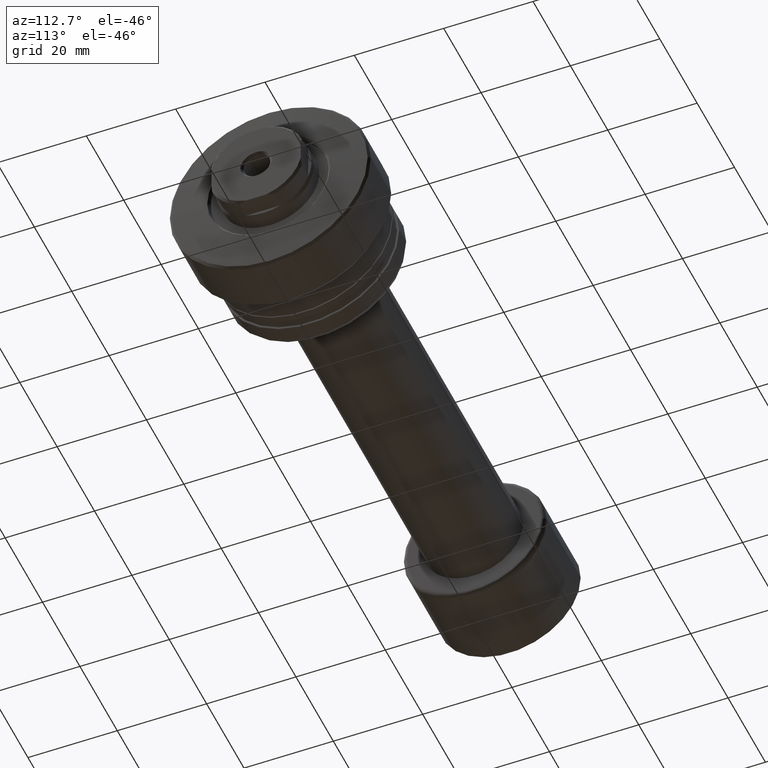
[diagram: clean part render]
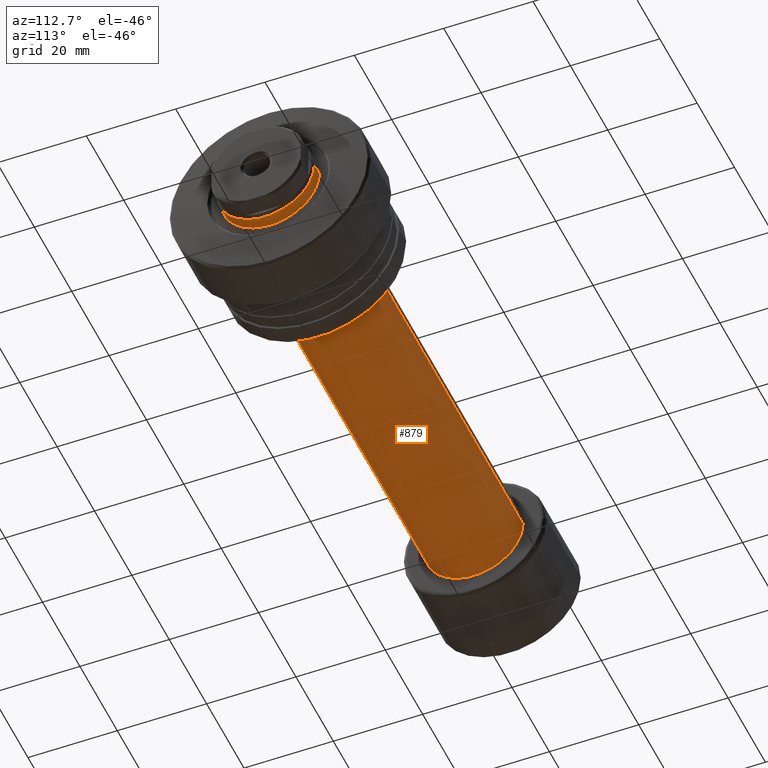
[diagram: same view with one face highlighted and labeled with its STEP entity id]
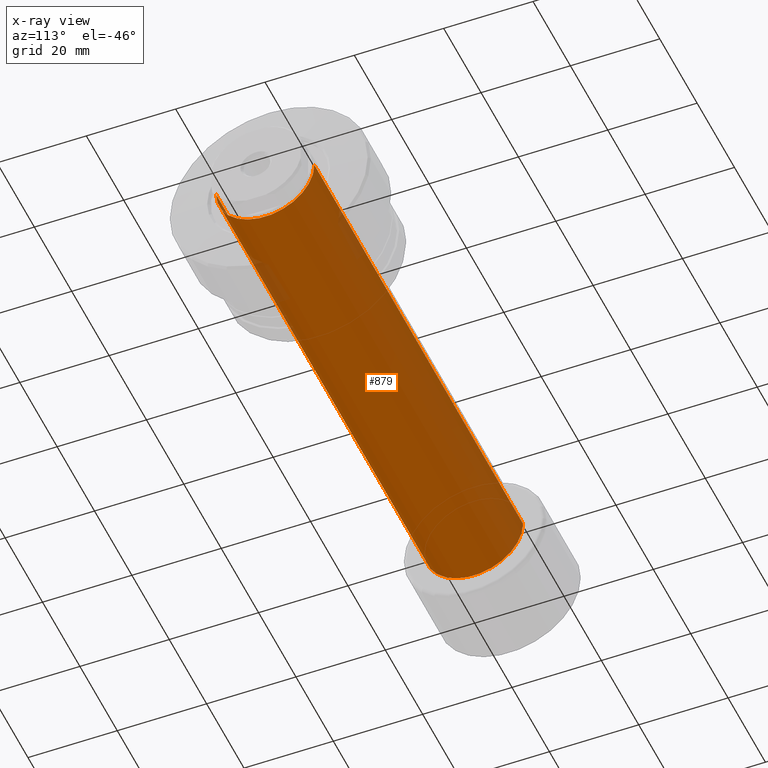
[diagram: x-ray of the same camera — body ghosted, the highlighted face saturated]
A machine part, auxiliary view. The second image highlights one B-rep face of the part: STEP entity #879.
The next image is the same camera in x-ray: the body ghosted, the highlighted face saturated — about 3% of this face is hidden behind the body in this view.
In plain terms, the highlighted cylindrical surface (partial cylindrical patch) has radius 11 mm, axis along (-1, -0, -0).
Its self-contained STEP definition (entity closure, byte-faithful):
#21 = ORIENTED_EDGE ( 'NONE', *, *, #837, .F. ) ;
#84 = LINE ( 'NONE', #1004, #278 ) ;
#99 = ORIENTED_EDGE ( 'NONE', *, *, #1921, .T. ) ;
#104 = LINE ( 'NONE', #1634, #1176 ) ;
#133 = FACE_OUTER_BOUND ( 'NONE', #1884, .T. ) ;
#176 = ORIENTED_EDGE ( 'NONE', *, *, #533, .F. ) ;
#278 = VECTOR ( 'NONE', #1588, 1000.000000000000000 ) ;
#387 = EDGE_CURVE ( 'NONE', #1234, #1424, #104, .T. ) ;
#411 = VERTEX_POINT ( 'NONE', #1985 ) ;
#438 = CIRCLE ( 'NONE', #1651, 11.00000000000019362 ) ;
#488 = DIRECTION ( 'NONE',  ( 0.000000000000000000, -1.000000000000000000, 0.000000000000000000 ) ) ;
#533 = EDGE_CURVE ( 'NONE', #411, #1424, #545, .T. ) ;
#545 = CIRCLE ( 'NONE', #1934, 11.00000000000000000 ) ;
#625 = DIRECTION ( 'NONE',  ( -1.000000000000000000, -1.069542322069065801E-17, -0.000000000000000000 ) ) ;
#739 = AXIS2_PLACEMENT_3D ( 'NONE', #2332, #625, #1375 ) ;
#771 = CARTESIAN_POINT ( 'NONE',  ( 132.0667575123237611, -11.00000000000019185, 0.000000000000000000 ) ) ;
#837 = EDGE_CURVE ( 'NONE', #1608, #411, #84, .T. ) ;
#879 = ADVANCED_FACE ( 'NONE', ( #133 ), #1573, .T. ) ;
#885 = CARTESIAN_POINT ( 'NONE',  ( 20.39999999999999503, -11.00000000000000000, 0.000000000000000000 ) ) ;
#1004 = CARTESIAN_POINT ( 'NONE',  ( -1.176496554275982688E-16, 11.00000000000009592, 1.347111479062100435E-15 ) ) ;
#1071 = DIRECTION ( 'NONE',  ( 0.000000000000000000, -1.000000000000000000, 0.000000000000000000 ) ) ;
#1176 = VECTOR ( 'NONE', #2201, 1000.000000000000000 ) ;
#1234 = VERTEX_POINT ( 'NONE', #771 ) ;
#1249 = DIRECTION ( 'NONE',  ( -1.000000000000000000, -1.069542322069065801E-17, -0.000000000000000000 ) ) ;
#1375 = DIRECTION ( 'NONE',  ( 1.069542322069065801E-17, -1.000000000000000000, 0.000000000000000000 ) ) ;
#1412 = CARTESIAN_POINT ( 'NONE',  ( 132.0667575123237611, 1.412509864978630128E-15, 0.000000000000000000 ) ) ;
#1424 = VERTEX_POINT ( 'NONE', #885 ) ;
#1450 = ORIENTED_EDGE ( 'NONE', *, *, #387, .T. ) ;
#1482 = CARTESIAN_POINT ( 'NONE',  ( 132.0667575123237611, 11.00000000000019362, 1.347111479062112268E-15 ) ) ;
#1573 = CYLINDRICAL_SURFACE ( 'NONE', #739, 11.00000000000009592 ) ;
#1588 = DIRECTION ( 'NONE',  ( -1.000000000000000000, -1.069542322069065801E-17, -0.000000000000000000 ) ) ;
#1608 = VERTEX_POINT ( 'NONE', #1482 ) ;
#1634 = CARTESIAN_POINT ( 'NONE',  ( 1.176496554275982688E-16, -11.00000000000009592, 0.000000000000000000 ) ) ;
#1651 = AXIS2_PLACEMENT_3D ( 'NONE', #1412, #1837, #488 ) ;
#1837 = DIRECTION ( 'NONE',  ( -1.000000000000000000, -1.069542322069065801E-17, -0.000000000000000000 ) ) ;
#1884 = EDGE_LOOP ( 'NONE', ( #21, #99, #1450, #176 ) ) ;
#1921 = EDGE_CURVE ( 'NONE', #1608, #1234, #438, .T. ) ;
#1934 = AXIS2_PLACEMENT_3D ( 'NONE', #2218, #1249, #1071 ) ;
#1985 = CARTESIAN_POINT ( 'NONE',  ( 20.39999999999999503, 11.00000000000000000, 1.347111479062094321E-15 ) ) ;
#2201 = DIRECTION ( 'NONE',  ( -1.000000000000000000, -1.069542322069065801E-17, -0.000000000000000000 ) ) ;
#2218 = CARTESIAN_POINT ( 'NONE',  ( 20.39999999999999503, 2.181866337020893623E-16, 0.000000000000000000 ) ) ;
#2332 = CARTESIAN_POINT ( 'NONE',  ( 0.000000000000000000, 0.000000000000000000, 0.000000000000000000 ) ) ;